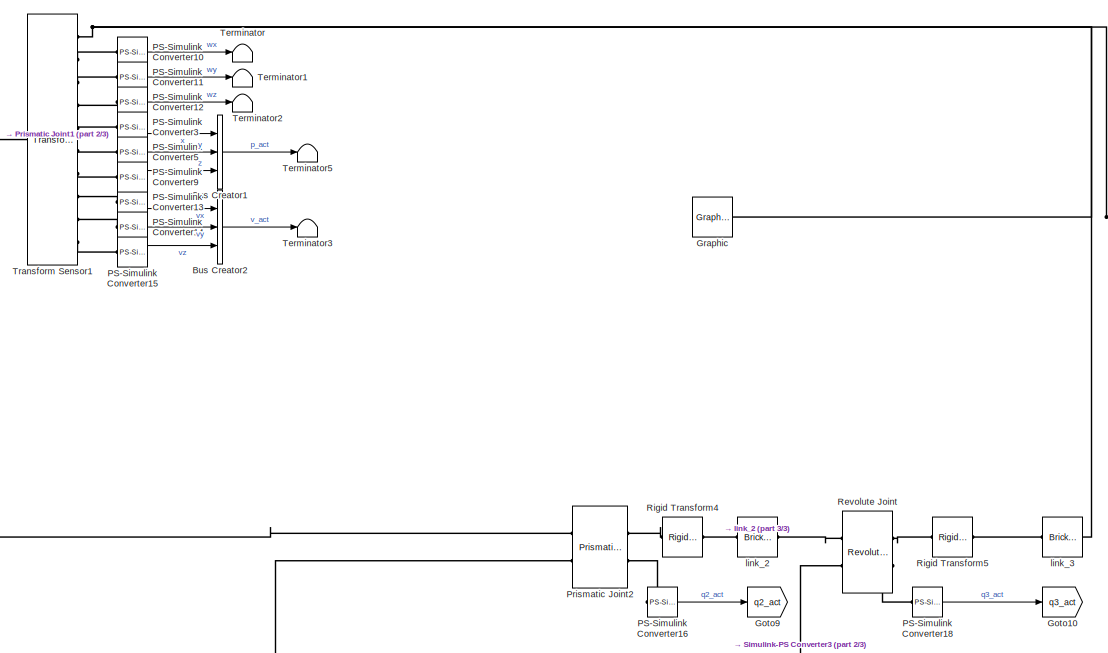
[diagram: root canvas - part 1/3, top right region]
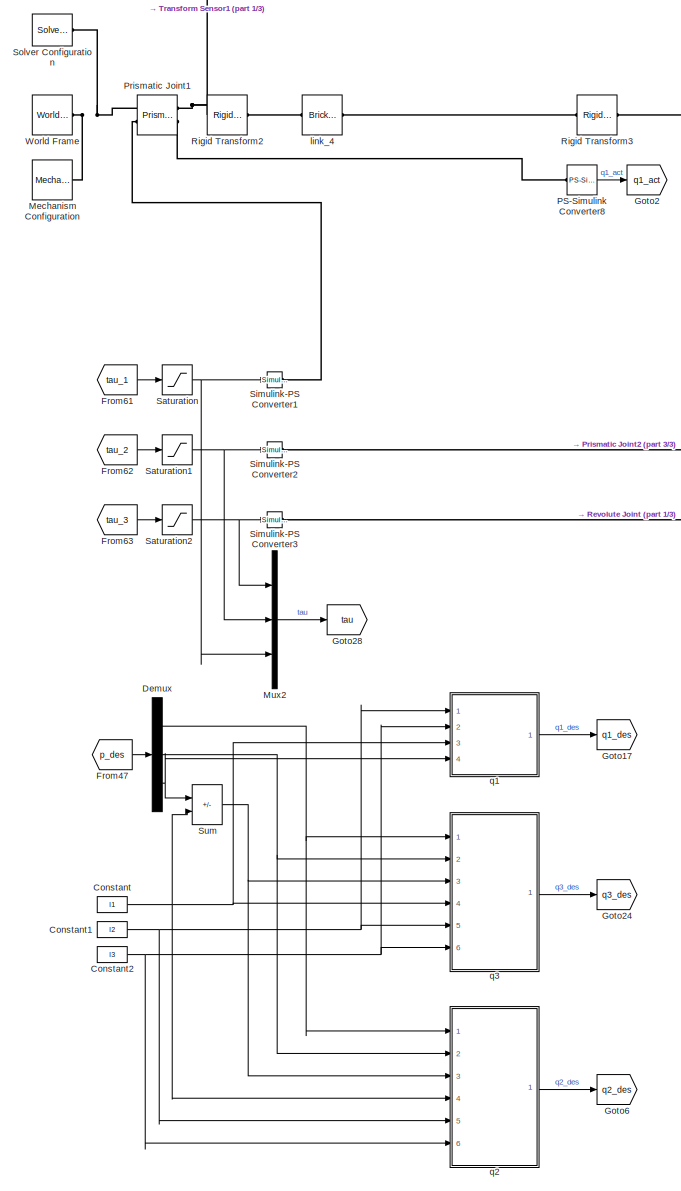
[diagram: root canvas - part 2/3, middle left region]
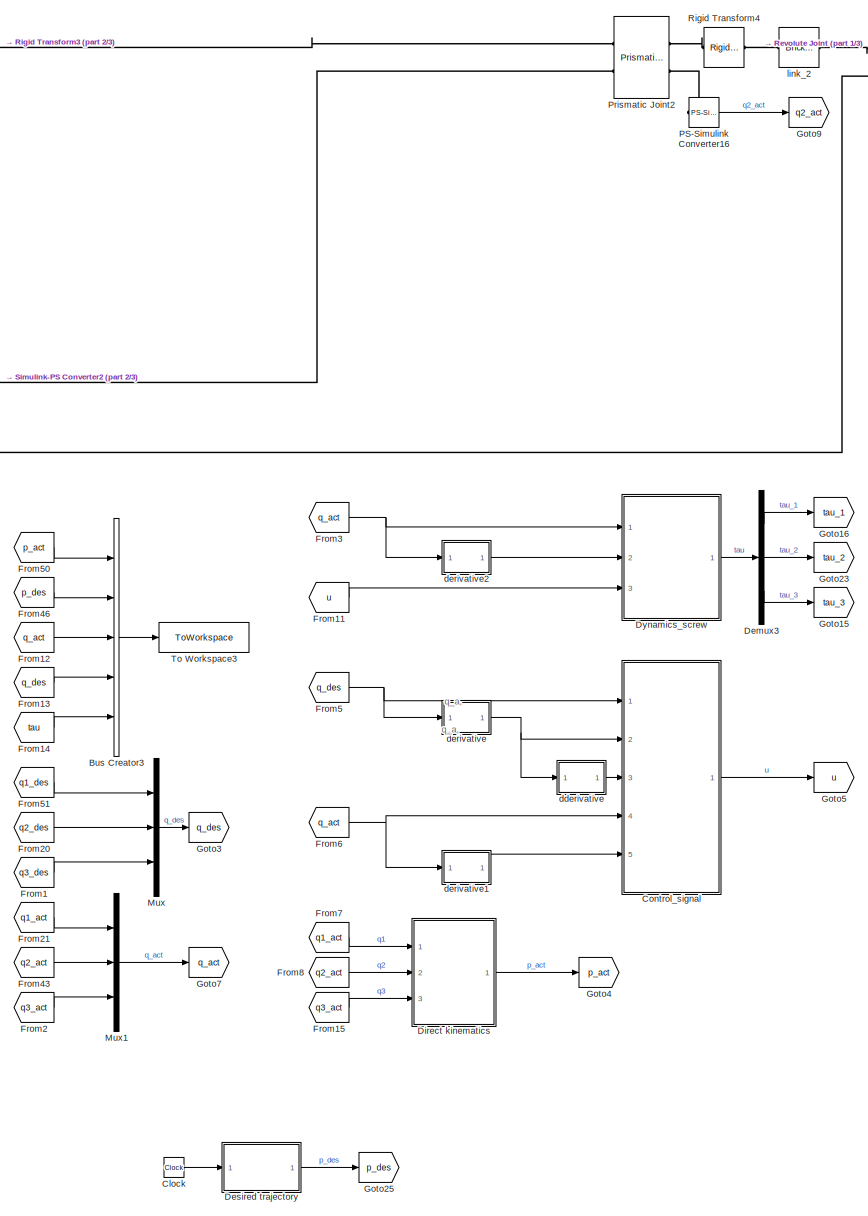
[diagram: root canvas - part 3/3, central region]
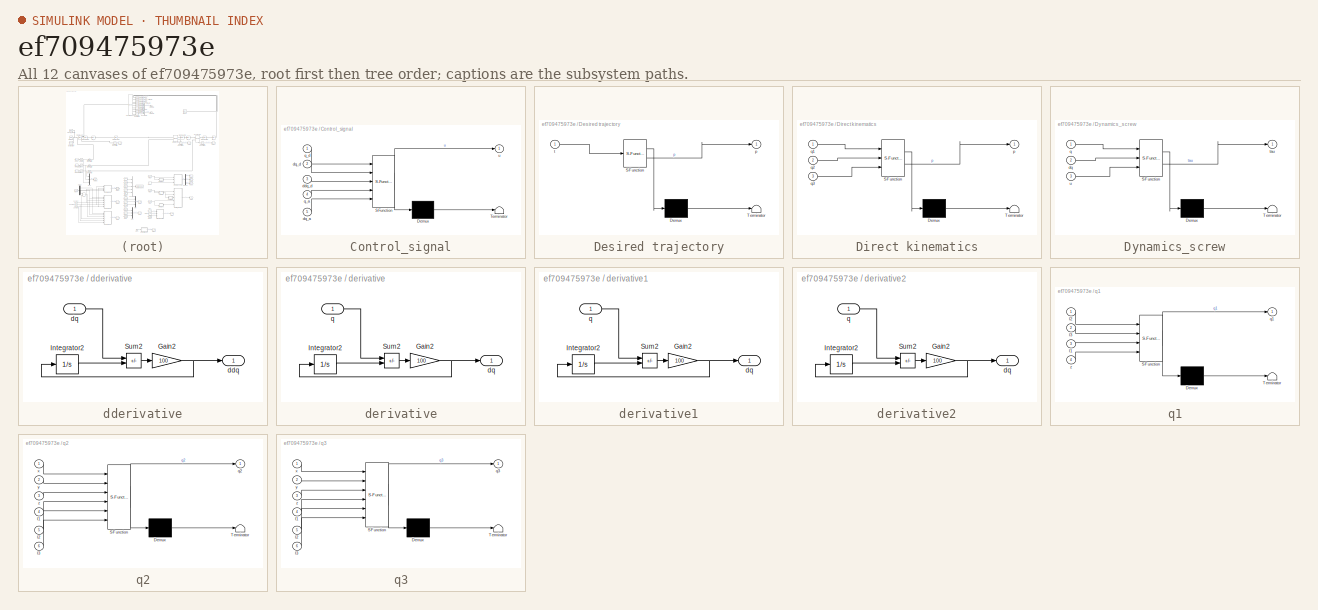
[diagram: thumbnail index - all 12 canvases of the model, root first then tree order]
MODEL slx_ef709475973e
KIND model
CONFIG AbsTol = auto
CONFIG EnableMultiTasking = on
CONFIG FixedStep = auto
CONFIG MaxStep = 0.01
CONFIG MinStep = auto
CONFIG RelTol = 1e-3
CONFIG SampleTimeConstraint = Unconstrained
CONFIG SolverName = VariableStepAuto
CONFIG StartTime = 0.0
CONFIG StopTime = StopTime
BLOCK [BusCreator] Bus Creator1
  DisplayOption = bar
  InheritFromInputs = on
  Inputs = 3
  Ports = [3, 1]
BLOCK [BusCreator] Bus Creator2
  DisplayOption = bar
  InheritFromInputs = on
  Inputs = 3
  Ports = [3, 1]
BLOCK [BusCreator] Bus Creator3
  DisplayOption = bar
  InheritFromInputs = on
  Inputs = 5
  Ports = [5, 1]
BLOCK [Clock] Clock
  Decimation = 4
BLOCK [Constant] Constant
  Value = l1
BLOCK [Constant] Constant1
  Value = l2
BLOCK [Constant] Constant2
  Value = l3
BLOCK [SubSystem] Control_signal
  ErrorFcn = Stateflow.Translate.translate
  PermitHierarchicalResolution = ExplicitOnly
  Ports = [5, 1]
  RequestExecContextInheritance = off
  SFBlockType = MATLAB Function
  TreatAsAtomicUnit = on
BLOCK [Demux] Control_signal/ Demux 
  Outputs = 1
  Ports = [1, 1]
BLOCK [S-Function] Control_signal/ SFunction 
  EnableBusSupport = on
  FunctionName = sf_sfun
  PortCounts = [5 2]
  Ports = [5, 2]
  SFcnIsStateOwnerBlock = off
  SFunctionDeploymentMode = off
  Tag = Stateflow S-Function 15
BLOCK [Terminator] Control_signal/ Terminator 
BLOCK [Inport] Control_signal/ddq_d
  Port = 3
BLOCK [Inport] Control_signal/dq_a
  Port = 5
BLOCK [Inport] Control_signal/dq_d
  Port = 2
BLOCK [Inport] Control_signal/q_a
  Port = 4
BLOCK [Inport] Control_signal/q_d
BLOCK [Outport] Control_signal/u
  VectorParamsAs1DForOutWhenUnconnected = off
BLOCK [Demux] Demux
  Outputs = 3
  Ports = [1, 3]
BLOCK [Demux] Demux3
  Outputs = 3
  Ports = [1, 3]
BLOCK [SubSystem] Desired trajectory
  ErrorFcn = Stateflow.Translate.translate
  PermitHierarchicalResolution = ExplicitOnly
  Ports = [1, 1]
  RequestExecContextInheritance = off
  SFBlockType = MATLAB Function
  TreatAsAtomicUnit = on
BLOCK [Demux] Desired trajectory/ Demux 
  Outputs = 1
  Ports = [1, 1]
BLOCK [S-Function] Desired trajectory/ SFunction 
  EnableBusSupport = on
  FunctionName = sf_sfun
  PortCounts = [1 2]
  Ports = [1, 2]
  SFcnIsStateOwnerBlock = off
  SFunctionDeploymentMode = off
  Tag = Stateflow S-Function 10
BLOCK [Terminator] Desired trajectory/ Terminator 
BLOCK [Outport] Desired trajectory/p
BLOCK [Inport] Desired trajectory/t
BLOCK [SubSystem] Direct kinematics
  ErrorFcn = Stateflow.Translate.translate
  PermitHierarchicalResolution = ExplicitOnly
  Ports = [3, 1]
  RequestExecContextInheritance = off
  SFBlockType = MATLAB Function
  TreatAsAtomicUnit = on
BLOCK [Demux] Direct kinematics/ Demux 
  Outputs = 1
  Ports = [1, 1]
BLOCK [S-Function] Direct kinematics/ SFunction 
  EnableBusSupport = on
  FunctionName = sf_sfun
  PortCounts = [3 2]
  Ports = [3, 2]
  SFcnIsStateOwnerBlock = off
  SFunctionDeploymentMode = off
  Tag = Stateflow S-Function 21
BLOCK [Terminator] Direct kinematics/ Terminator 
BLOCK [Outport] Direct kinematics/p
  VectorParamsAs1DForOutWhenUnconnected = off
BLOCK [Inport] Direct kinematics/q1
BLOCK [Inport] Direct kinematics/q2
  Port = 2
BLOCK [Inport] Direct kinematics/q3
  Port = 3
BLOCK [SubSystem] Dynamics_screw
  ErrorFcn = Stateflow.Translate.translate
  PermitHierarchicalResolution = ExplicitOnly
  Ports = [3, 1]
  RequestExecContextInheritance = off
  SFBlockType = MATLAB Function
  TreatAsAtomicUnit = on
BLOCK [Demux] Dynamics_screw/ Demux 
  Outputs = 1
  Ports = [1, 1]
BLOCK [S-Function] Dynamics_screw/ SFunction 
  EnableBusSupport = on
  FunctionName = sf_sfun
  PortCounts = [3 2]
  Ports = [3, 2]
  SFcnIsStateOwnerBlock = off
  SFunctionDeploymentMode = off
  Tag = Stateflow S-Function 17
BLOCK [Terminator] Dynamics_screw/ Terminator 
BLOCK [Inport] Dynamics_screw/dq
  Port = 2
BLOCK [Inport] Dynamics_screw/q
BLOCK [Outport] Dynamics_screw/tau
  VectorParamsAs1DForOutWhenUnconnected = off
BLOCK [Inport] Dynamics_screw/u
  Port = 3
BLOCK [From] From1
  GotoTag = q3_des
BLOCK [From] From11
  GotoTag = u
BLOCK [From] From12
  GotoTag = q_act
BLOCK [From] From13
  GotoTag = q_des
BLOCK [From] From14
  GotoTag = tau
BLOCK [From] From15
  GotoTag = q3_act
BLOCK [From] From2
  GotoTag = q3_act
BLOCK [From] From20
  GotoTag = q2_des
BLOCK [From] From21
  GotoTag = q1_act
BLOCK [From] From3
  GotoTag = q_act
BLOCK [From] From43
  GotoTag = q2_act
BLOCK [From] From46
  GotoTag = p_des
BLOCK [From] From47
  GotoTag = p_des
BLOCK [From] From5
  GotoTag = q_des
BLOCK [From] From50
  GotoTag = p_act
BLOCK [From] From51
  GotoTag = q1_des
BLOCK [From] From6
  GotoTag = q_act
BLOCK [From] From61
  GotoTag = tau_1
BLOCK [From] From62
  GotoTag = tau_2
BLOCK [From] From63
  GotoTag = tau_3
BLOCK [From] From7
  GotoTag = q1_act
BLOCK [From] From8
  GotoTag = q2_act
BLOCK [Goto] Goto10
  GotoTag = q3_act
BLOCK [Goto] Goto15
  GotoTag = tau_3
BLOCK [Goto] Goto16
  GotoTag = tau_1
BLOCK [Goto] Goto17
  GotoTag = q1_des
BLOCK [Goto] Goto2
  GotoTag = q1_act
BLOCK [Goto] Goto23
  GotoTag = tau_2
BLOCK [Goto] Goto24
  GotoTag = q3_des
BLOCK [Goto] Goto25
  GotoTag = p_des
BLOCK [Goto] Goto28
  GotoTag = tau
BLOCK [Goto] Goto3
  GotoTag = q_des
BLOCK [Goto] Goto4
  GotoTag = p_act
BLOCK [Goto] Goto5
  GotoTag = u
BLOCK [Goto] Goto6
  GotoTag = q2_des
BLOCK [Goto] Goto7
  GotoTag = q_act
BLOCK [Goto] Goto9
  GotoTag = q2_act
BLOCK [Reference] Graphic  REF=sm_lib/Body Elements/Graphic
  Ports = [0, 0, 0, 0, 0, 0, 1]
  SourceBlock = sm_lib/Body Elements/Graphic
  SourceProductBaseCode = MS
  SourceType = Graphic
BLOCK [Reference] Mechanism Configuration  REF=sm_lib/Utilities/Mechanism
Configuration
  Ports = [0, 0, 0, 0, 0, 0, 1]
  SourceBlock = sm_lib/Utilities/Mechanism\nConfiguration
  SourceProductBaseCode = MS
  SourceType = Mechanism\nConfiguration
BLOCK [Mux] Mux
  DisplayOption = bar
  Inputs = 3
  Ports = [3, 1]
BLOCK [Mux] Mux1
  DisplayOption = bar
  Inputs = 3
  Ports = [3, 1]
BLOCK [Mux] Mux2
  DisplayOption = bar
  Inputs = 3
  Ports = [3, 1]
BLOCK [Reference] PS-Simulink Converter10  REF=nesl_utility/PS-Simulink
Converter
  Ports = [0, 1, 0, 0, 0, 1]
  SourceBlock = nesl_utility/PS-Simulink\nConverter
  SourceProductBaseCode = PW,SS
  SourceType = PS-Simulink\nConverter
BLOCK [Reference] PS-Simulink Converter11  REF=nesl_utility/PS-Simulink
Converter
  Ports = [0, 1, 0, 0, 0, 1]
  SourceBlock = nesl_utility/PS-Simulink\nConverter
  SourceProductBaseCode = PW,SS
  SourceType = PS-Simulink\nConverter
BLOCK [Reference] PS-Simulink Converter12  REF=nesl_utility/PS-Simulink
Converter
  Ports = [0, 1, 0, 0, 0, 1]
  SourceBlock = nesl_utility/PS-Simulink\nConverter
  SourceProductBaseCode = PW,SS
  SourceType = PS-Simulink\nConverter
BLOCK [Reference] PS-Simulink Converter13  REF=nesl_utility/PS-Simulink
Converter
  Ports = [0, 1, 0, 0, 0, 1]
  SourceBlock = nesl_utility/PS-Simulink\nConverter
  SourceProductBaseCode = PW,SS
  SourceType = PS-Simulink\nConverter
BLOCK [Reference] PS-Simulink Converter14  REF=nesl_utility/PS-Simulink
Converter
  Ports = [0, 1, 0, 0, 0, 1]
  SourceBlock = nesl_utility/PS-Simulink\nConverter
  SourceProductBaseCode = PW,SS
  SourceType = PS-Simulink\nConverter
BLOCK [Reference] PS-Simulink Converter15  REF=nesl_utility/PS-Simulink
Converter
  Ports = [0, 1, 0, 0, 0, 1]
  SourceBlock = nesl_utility/PS-Simulink\nConverter
  SourceProductBaseCode = PW,SS
  SourceType = PS-Simulink\nConverter
BLOCK [Reference] PS-Simulink Converter16  REF=nesl_utility/PS-Simulink
Converter
  Ports = [0, 1, 0, 0, 0, 1]
  SourceBlock = nesl_utility/PS-Simulink\nConverter
  SourceProductBaseCode = PW,SS
  SourceType = PS-Simulink\nConverter
BLOCK [Reference] PS-Simulink Converter18  REF=nesl_utility/PS-Simulink
Converter
  Ports = [0, 1, 0, 0, 0, 1]
  SourceBlock = nesl_utility/PS-Simulink\nConverter
  SourceProductBaseCode = PW,SS
  SourceType = PS-Simulink\nConverter
BLOCK [Reference] PS-Simulink Converter3  REF=nesl_utility/PS-Simulink
Converter
  Ports = [0, 1, 0, 0, 0, 1]
  SourceBlock = nesl_utility/PS-Simulink\nConverter
  SourceProductBaseCode = PW,SS
  SourceType = PS-Simulink\nConverter
BLOCK [Reference] PS-Simulink Converter5  REF=nesl_utility/PS-Simulink
Converter
  Ports = [0, 1, 0, 0, 0, 1]
  SourceBlock = nesl_utility/PS-Simulink\nConverter
  SourceProductBaseCode = PW,SS
  SourceType = PS-Simulink\nConverter
BLOCK [Reference] PS-Simulink Converter8  REF=nesl_utility/PS-Simulink
Converter
  Ports = [0, 1, 0, 0, 0, 1]
  SourceBlock = nesl_utility/PS-Simulink\nConverter
  SourceProductBaseCode = PW,SS
  SourceType = PS-Simulink\nConverter
BLOCK [Reference] PS-Simulink Converter9  REF=nesl_utility/PS-Simulink
Converter
  Ports = [0, 1, 0, 0, 0, 1]
  SourceBlock = nesl_utility/PS-Simulink\nConverter
  SourceProductBaseCode = PW,SS
  SourceType = PS-Simulink\nConverter
BLOCK [Reference] Prismatic Joint1  REF=sm_lib/Joints/Prismatic
Joint
  Ports = [0, 0, 0, 0, 0, 2, 2]
  SourceBlock = sm_lib/Joints/Prismatic\nJoint
  SourceProductBaseCode = MS
  SourceType = Prismatic\nJoint
BLOCK [Reference] Prismatic Joint2  REF=sm_lib/Joints/Prismatic
Joint
  Ports = [0, 0, 0, 0, 0, 2, 2]
  SourceBlock = sm_lib/Joints/Prismatic\nJoint
  SourceProductBaseCode = MS
  SourceType = Prismatic\nJoint
BLOCK [Reference] Revolute Joint  REF=sm_lib/Joints/Revolute Joint
  Ports = [0, 0, 0, 0, 0, 2, 2]
  SourceBlock = sm_lib/Joints/Revolute Joint
  SourceProductBaseCode = MS
  SourceType = Revolute Joint
BLOCK [Reference] Rigid Transform2  REF=sm_lib/Frames and
Transforms/Rigid
Transform
  Ports = [0, 0, 0, 0, 0, 1, 1]
  SourceBlock = sm_lib/Frames and\nTransforms/Rigid\nTransform
  SourceProductBaseCode = MS
  SourceType = Rigid\nTransform
BLOCK [Reference] Rigid Transform3  REF=sm_lib/Frames and
Transforms/Rigid
Transform
  Ports = [0, 0, 0, 0, 0, 1, 1]
  SourceBlock = sm_lib/Frames and\nTransforms/Rigid\nTransform
  SourceProductBaseCode = MS
  SourceType = Rigid\nTransform
BLOCK [Reference] Rigid Transform4  REF=sm_lib/Frames and
Transforms/Rigid
Transform
  Ports = [0, 0, 0, 0, 0, 1, 1]
  SourceBlock = sm_lib/Frames and\nTransforms/Rigid\nTransform
  SourceProductBaseCode = MS
  SourceType = Rigid\nTransform
BLOCK [Reference] Rigid Transform5  REF=sm_lib/Frames and
Transforms/Rigid
Transform
  Ports = [0, 0, 0, 0, 0, 1, 1]
  SourceBlock = sm_lib/Frames and\nTransforms/Rigid\nTransform
  SourceProductBaseCode = MS
  SourceType = Rigid\nTransform
BLOCK [Saturate] Saturation
  LowerLimit = -0.23
  UpperLimit = 0.23
BLOCK [Saturate] Saturation1
  LowerLimit = -0.43
  UpperLimit = 0.43
BLOCK [Saturate] Saturation2
  LowerLimit = -0.19
  UpperLimit = 0.19
BLOCK [Reference] Simulink-PS Converter1  REF=nesl_utility/Simulink-PS
Converter
  Ports = [1, 0, 0, 0, 0, 0, 1]
  SourceBlock = nesl_utility/Simulink-PS\nConverter
  SourceProductBaseCode = PW,SS
  SourceType = Simulink-PS\nConverter
BLOCK [Reference] Simulink-PS Converter2  REF=nesl_utility/Simulink-PS
Converter
  Ports = [1, 0, 0, 0, 0, 0, 1]
  SourceBlock = nesl_utility/Simulink-PS\nConverter
  SourceProductBaseCode = PW,SS
  SourceType = Simulink-PS\nConverter
BLOCK [Reference] Simulink-PS Converter3  REF=nesl_utility/Simulink-PS
Converter
  Ports = [1, 0, 0, 0, 0, 0, 1]
  SourceBlock = nesl_utility/Simulink-PS\nConverter
  SourceProductBaseCode = PW,SS
  SourceType = Simulink-PS\nConverter
BLOCK [Reference] Solver Configuration  REF=nesl_utility/Solver
Configuration
  Ports = [0, 0, 0, 0, 0, 0, 1]
  SourceBlock = nesl_utility/Solver\nConfiguration
  SourceProductBaseCode = PW,SS
  SourceType = Solver\nConfiguration
BLOCK [Sum] Sum
  IconShape = rectangular
  Inputs = +-
  Ports = [2, 1]
BLOCK [Terminator] Terminator
BLOCK [Terminator] Terminator1
BLOCK [Terminator] Terminator2
BLOCK [Terminator] Terminator3
BLOCK [Terminator] Terminator5
BLOCK [ToWorkspace] To Workspace3
  FixptAsFi = on
  MaxDataPoints = inf
  Ports = [1]
  SampleTime = -1
  SaveFormat = Timeseries
  VariableName = outputs
BLOCK [Reference] Transform Sensor1  REF=sm_lib/Frames and
Transforms/Transform
Sensor
  Ports = [0, 0, 0, 0, 0, 1, 10]
  SourceBlock = sm_lib/Frames and\nTransforms/Transform\nSensor
  SourceProductBaseCode = MS
  SourceType = Transform\nSensor
BLOCK [Reference] World Frame  REF=sm_lib/Frames and
Transforms/World Frame
  Ports = [0, 0, 0, 0, 0, 0, 1]
  SourceBlock = sm_lib/Frames and\nTransforms/World Frame
  SourceProductBaseCode = MS
  SourceType = World Frame
BLOCK [SubSystem] dderivative
  Ports = [1, 1]
  RequestExecContextInheritance = off
BLOCK [Gain] dderivative/Gain2
  Gain = 100
BLOCK [Integrator] dderivative/Integrator2
  Ports = [1, 1]
BLOCK [Sum] dderivative/Sum2
  IconShape = rectangular
  Inputs = +-
  Ports = [2, 1]
BLOCK [Outport] dderivative/ddq
BLOCK [Inport] dderivative/dq
BLOCK [SubSystem] derivative
  Ports = [1, 1]
  RequestExecContextInheritance = off
BLOCK [Gain] derivative/Gain2
  Gain = 100
BLOCK [Integrator] derivative/Integrator2
  Ports = [1, 1]
BLOCK [Sum] derivative/Sum2
  IconShape = rectangular
  Inputs = +-
  Ports = [2, 1]
BLOCK [Outport] derivative/dq
BLOCK [Inport] derivative/q
BLOCK [SubSystem] derivative1
  Ports = [1, 1]
  RequestExecContextInheritance = off
BLOCK [Gain] derivative1/Gain2
  Gain = 100
BLOCK [Integrator] derivative1/Integrator2
  Ports = [1, 1]
BLOCK [Sum] derivative1/Sum2
  IconShape = rectangular
  Inputs = +-
  Ports = [2, 1]
BLOCK [Outport] derivative1/dq
BLOCK [Inport] derivative1/q
BLOCK [SubSystem] derivative2
  Ports = [1, 1]
  RequestExecContextInheritance = off
BLOCK [Gain] derivative2/Gain2
  Gain = 100
BLOCK [Integrator] derivative2/Integrator2
  Ports = [1, 1]
BLOCK [Sum] derivative2/Sum2
  IconShape = rectangular
  Inputs = +-
  Ports = [2, 1]
BLOCK [Outport] derivative2/dq
BLOCK [Inport] derivative2/q
BLOCK [Reference] link_2  REF=sm_lib/Body Elements/Brick Solid
  Ports = [0, 0, 0, 0, 0, 1, 1]
  SourceBlock = sm_lib/Body Elements/Brick Solid
  SourceProductBaseCode = MS
  SourceType = Brick Solid
BLOCK [Reference] link_3  REF=sm_lib/Body Elements/Brick Solid
  Ports = [0, 0, 0, 0, 0, 1, 1]
  SourceBlock = sm_lib/Body Elements/Brick Solid
  SourceProductBaseCode = MS
  SourceType = Brick Solid
BLOCK [Reference] link_4  REF=sm_lib/Body Elements/Brick Solid
  Ports = [0, 0, 0, 0, 0, 1, 1]
  SourceBlock = sm_lib/Body Elements/Brick Solid
  SourceProductBaseCode = MS
  SourceType = Brick Solid
BLOCK [SubSystem] q1
  ErrorFcn = Stateflow.Translate.translate
  PermitHierarchicalResolution = ExplicitOnly
  Ports = [4, 1]
  RequestExecContextInheritance = off
  SFBlockType = MATLAB Function
  TreatAsAtomicUnit = on
BLOCK [Demux] q1/ Demux 
  Outputs = 1
  Ports = [1, 1]
BLOCK [S-Function] q1/ SFunction 
  EnableBusSupport = on
  FunctionName = sf_sfun
  PortCounts = [4 2]
  Ports = [4, 2]
  SFcnIsStateOwnerBlock = off
  SFunctionDeploymentMode = off
  Tag = Stateflow S-Function 11
BLOCK [Terminator] q1/ Terminator 
BLOCK [Inport] q1/l1
  Port = 3
BLOCK [Inport] q1/l2
BLOCK [Inport] q1/l3
  Port = 2
BLOCK [Outport] q1/q1
BLOCK [Inport] q1/z
  Port = 4
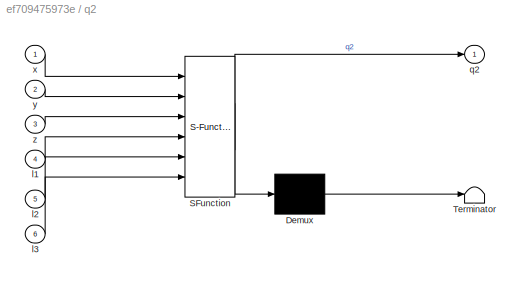
BLOCK [SubSystem] q2
  ErrorFcn = Stateflow.Translate.translate
  PermitHierarchicalResolution = ExplicitOnly
  Ports = [6, 1]
  RequestExecContextInheritance = off
  SFBlockType = MATLAB Function
  TreatAsAtomicUnit = on
BLOCK [Demux] q2/ Demux 
  Outputs = 1
  Ports = [1, 1]
BLOCK [S-Function] q2/ SFunction 
  EnableBusSupport = on
  FunctionName = sf_sfun
  PortCounts = [6 2]
  Ports = [6, 2]
  SFcnIsStateOwnerBlock = off
  SFunctionDeploymentMode = off
  Tag = Stateflow S-Function 13
BLOCK [Terminator] q2/ Terminator 
BLOCK [Inport] q2/l1
  Port = 4
BLOCK [Inport] q2/l2
  Port = 5
BLOCK [Inport] q2/l3
  Port = 6
BLOCK [Outport] q2/q2
BLOCK [Inport] q2/x
BLOCK [Inport] q2/y
  Port = 2
BLOCK [Inport] q2/z
  Port = 3
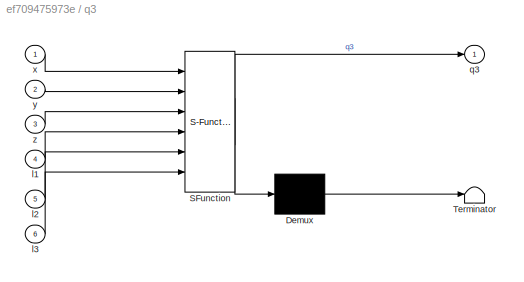
BLOCK [SubSystem] q3
  ErrorFcn = Stateflow.Translate.translate
  PermitHierarchicalResolution = ExplicitOnly
  Ports = [6, 1]
  RequestExecContextInheritance = off
  SFBlockType = MATLAB Function
  TreatAsAtomicUnit = on
BLOCK [Demux] q3/ Demux 
  Outputs = 1
  Ports = [1, 1]
BLOCK [S-Function] q3/ SFunction 
  EnableBusSupport = on
  FunctionName = sf_sfun
  PortCounts = [6 2]
  Ports = [6, 2]
  SFcnIsStateOwnerBlock = off
  SFunctionDeploymentMode = off
  Tag = Stateflow S-Function 12
BLOCK [Terminator] q3/ Terminator 
BLOCK [Inport] q3/l1
  Port = 4
BLOCK [Inport] q3/l2
  Port = 5
BLOCK [Inport] q3/l3
  Port = 6
BLOCK [Outport] q3/q3
BLOCK [Inport] q3/x
BLOCK [Inport] q3/y
  Port = 2
BLOCK [Inport] q3/z
  Port = 3
ANNOTATION (root): q_a,
LINE Bus Creator1:1 -> Terminator5:1
LINE Bus Creator2:1 -> Terminator3:1
LINE Bus Creator3:1 -> To Workspace3:1
LINE Clock:1 -> Desired trajectory:1
NET Constant1:1 -> q1:1, q2:5, q3:5
NET Constant2:1 -> q1:2, q2:6, q3:6
NET Constant:1 -> Sum:2, q1:3, q2:4, q3:4
LINE Control_signal:1 -> Goto5:1
LINE Demux3:1 -> Goto16:1
LINE Demux3:2 -> Goto23:1
LINE Demux3:3 -> Goto15:1
NET Demux:1 -> q2:1, q3:1
NET Demux:2 -> q2:2, q3:2
NET Demux:3 -> Sum:1, q1:4
LINE Desired trajectory:1 -> Goto25:1
LINE Direct kinematics:1 -> Goto4:1
LINE Dynamics_screw:1 -> Demux3:1
LINE From11:1 -> Dynamics_screw:3
LINE From12:1 -> Bus Creator3:3
LINE From13:1 -> Bus Creator3:4
LINE From14:1 -> Bus Creator3:5
LINE From15:1 -> Direct kinematics:3
LINE From1:1 -> Mux:3
LINE From20:1 -> Mux:2
LINE From21:1 -> Mux1:1
LINE From2:1 -> Mux1:3
NET From3:1 -> Dynamics_screw:1, derivative2:1
LINE From43:1 -> Mux1:2
LINE From46:1 -> Bus Creator3:2
LINE From47:1 -> Demux:1
LINE From50:1 -> Bus Creator3:1
LINE From51:1 -> Mux:1
NET From5:1 -> Control_signal:1, derivative:1
LINE From61:1 -> Saturation:1
LINE From62:1 -> Saturation1:1
LINE From63:1 -> Saturation2:1
NET From6:1 -> Control_signal:4, derivative1:1
LINE From7:1 -> Direct kinematics:1
LINE From8:1 -> Direct kinematics:2
LINE Mux1:1 -> Goto7:1
LINE Mux2:1 -> Goto28:1
LINE Mux:1 -> Goto3:1
LINE PS-Simulink Converter10:1 -> Terminator:1
LINE PS-Simulink Converter11:1 -> Terminator1:1
LINE PS-Simulink Converter12:1 -> Terminator2:1
LINE PS-Simulink Converter13:1 -> Bus Creator2:1
LINE PS-Simulink Converter14:1 -> Bus Creator2:2
LINE PS-Simulink Converter15:1 -> Bus Creator2:3
LINE PS-Simulink Converter16:1 -> Goto9:1
LINE PS-Simulink Converter18:1 -> Goto10:1
LINE PS-Simulink Converter3:1 -> Bus Creator1:1
LINE PS-Simulink Converter5:1 -> Bus Creator1:2
LINE PS-Simulink Converter8:1 -> Goto2:1
LINE PS-Simulink Converter9:1 -> Bus Creator1:3
NET Saturation1:1 -> Mux2:2, Simulink-PS Converter2:1
NET Saturation2:1 -> Mux2:1, Simulink-PS Converter3:1
NET Saturation:1 -> Mux2:3, Simulink-PS Converter1:1
NET Sum:1 -> q2:3, q3:3
NET dderivative/Gain2:1 -> dderivative/Integrator2:1, dderivative/ddq:1
LINE dderivative/Integrator2:1 -> dderivative/Sum2:2
LINE dderivative/Sum2:1 -> dderivative/Gain2:1
LINE dderivative/dq:1 -> dderivative/Sum2:1
LINE dderivative:1 -> Control_signal:3
NET derivative/Gain2:1 -> derivative/Integrator2:1, derivative/dq:1
LINE derivative/Integrator2:1 -> derivative/Sum2:2
LINE derivative/Sum2:1 -> derivative/Gain2:1
LINE derivative/q:1 -> derivative/Sum2:1
NET derivative1/Gain2:1 -> derivative1/Integrator2:1, derivative1/dq:1
LINE derivative1/Integrator2:1 -> derivative1/Sum2:2
LINE derivative1/Sum2:1 -> derivative1/Gain2:1
LINE derivative1/q:1 -> derivative1/Sum2:1
LINE derivative1:1 -> Control_signal:5
NET derivative2/Gain2:1 -> derivative2/Integrator2:1, derivative2/dq:1
LINE derivative2/Integrator2:1 -> derivative2/Sum2:2
LINE derivative2/Sum2:1 -> derivative2/Gain2:1
LINE derivative2/q:1 -> derivative2/Sum2:1
LINE derivative2:1 -> Dynamics_screw:2
NET derivative:1 -> Control_signal:2, dderivative:1
LINE q1:1 -> Goto17:1
LINE q2:1 -> Goto6:1
LINE q3:1 -> Goto24:1
PNET net1: Graphic:RConn1 -- Transform Sensor1:RConn1 -- link_3:RConn1
PNET net2: Mechanism Configuration:RConn1 -- Prismatic Joint1:LConn1 -- Solver Configuration:RConn1 -- World Frame:RConn1
PLINE PS-Simulink Converter10:LConn1 -- Transform Sensor1:RConn2
PLINE PS-Simulink Converter11:LConn1 -- Transform Sensor1:RConn3
PLINE PS-Simulink Converter12:LConn1 -- Transform Sensor1:RConn4
PLINE PS-Simulink Converter13:LConn1 -- Transform Sensor1:RConn8
PLINE PS-Simulink Converter14:LConn1 -- Transform Sensor1:RConn9
PLINE PS-Simulink Converter15:LConn1 -- Transform Sensor1:RConn10
PLINE PS-Simulink Converter16:LConn1 -- Prismatic Joint2:RConn2
PLINE PS-Simulink Converter18:LConn1 -- Revolute Joint:RConn2
PLINE PS-Simulink Converter3:LConn1 -- Transform Sensor1:RConn5
PLINE PS-Simulink Converter5:LConn1 -- Transform Sensor1:RConn6
PLINE PS-Simulink Converter8:LConn1 -- Prismatic Joint1:RConn2
PLINE PS-Simulink Converter9:LConn1 -- Transform Sensor1:RConn7
PLINE Prismatic Joint1:LConn2 -- Simulink-PS Converter1:RConn1
PNET net3: Prismatic Joint1:RConn1 -- Rigid Transform2:LConn1 -- Transform Sensor1:LConn1
PLINE Prismatic Joint2:LConn1 -- Rigid Transform3:RConn1
PLINE Prismatic Joint2:LConn2 -- Simulink-PS Converter2:RConn1
PLINE Prismatic Joint2:RConn1 -- Rigid Transform4:LConn1
PLINE Revolute Joint:LConn1 -- link_2:RConn1
PLINE Revolute Joint:LConn2 -- Simulink-PS Converter3:RConn1
PLINE Revolute Joint:RConn1 -- Rigid Transform5:LConn1
PLINE Rigid Transform2:RConn1 -- link_4:LConn1
PLINE Rigid Transform3:LConn1 -- link_4:RConn1
PLINE Rigid Transform4:RConn1 -- link_2:LConn1
PLINE Rigid Transform5:RConn1 -- link_3:LConn1
note: NET lines group one-source signal fan-out (src -> all destinations, sorted); 1:1 wires keep LINE; PNET lines group multi-terminal physical nets as a canonical sorted terminal list (undirected conserving connections); 2-terminal nets keep the pairwise PLINE form
CHART Desired trajectory states=1 transitions=1
  STATE_LABEL 'eML_blk_kernel()'
  STATE_LABEL 'SCRIPT:\nfunction p = fcn(t)\n% p = [0.2*sin(1*t)+0.3;...\n%      0.2*cos(1*t)+0.3;...\n%      0.2*cos(1*t)+0.6];\np = [0;...\n      0;...\n      abs(-0.4*cos(0.5*t))+0.2];\n'
CHART q1 states=1 transitions=1
  STATE_LABEL 'eML_blk_kernel()'
  STATE_LABEL 'SCRIPT:\nfunction q1 = fcn(l2,l3, l1, z)\nqt = z-(l1+l2+l3);\nq1=0.271*qt;\n% q1 = atan2(y,x)+pi;\n% As long as x,y \\neq 0 both these solutions are valid\n% When x,y = 0 the arm is in a singular configuration \n% and there are infinitely many possible solutions for q1.\n'
CHART q3 states=1 transitions=1
  STATE_LABEL 'eML_blk_kernel()'
  STATE_LABEL 'SCRIPT:\nfunction q3 = fcn(x,y,z,l1,l2,l3)\n% D = (x^2 + y^2 + z^2 - l2^2 -l3^2)/(2*l_2*l_3);\n% q3 = atan2(sqrt(1-D^2), D);\n\nqt = z-(l1+l2+l3);\nq1=0.271*qt;\nq2=0.506*qt;\nq3=atan2(q1,q2);\n\n\n\n'
CHART q2 states=1 transitions=1
  STATE_LABEL 'eML_blk_kernel()'
  STATE_LABEL 'SCRIPT:\nfunction q2 = fcn(x,y,z,l1,l2,l3)\n% q2 = atan2(z, sqrt(x^2 + y^2)) - atan2(l3*sin(q3), l2+l3*cos(q3));\n% argument = (x^2+y^2+z^2+l2^2-l3^2)/(2*sqrt(x^2+y^2+z^2)*l2);\n% alpha = acos(argument);\n% gamma = atan2(z, sqrt(x^2+y^2));\nqt = z-(l1+l2+l3);\nq1=0.271*qt;\nq2=0.506*qt;\n'
CHART Control_signal states=1 transitions=1
  STATE_LABEL 'eML_blk_kernel()'
  STATE_LABEL 'SCRIPT:\nfunction u = fcn(q_d,dq_d,ddq_d, q_a,dq_a)\nKa=1;\nKv=20;\nKp=40;\nu = Ka*ddq_d + Kv*(dq_d-dq_a) + Kp*(q_d-q_a);'
CHART Dynamics_screw states=1 transitions=1
  STATE_LABEL 'eML_blk_kernel()'
  STATE_LABEL 'SCRIPT:\nfunction tau= fcn(q,dq,u)\nq1=q(1); q2=q(2); q3=q(3);\ndq1=dq(1); dq2=dq(2); dq3=dq(3);\n\nl1=0.23; l2=0.43; l3=0.19;\nm1 = 16.726;\nm2 = 6.237;\nm3 = 12.243;\ng=9.80665; \n\njx1=0.04905; jy1=0.04905; jz1=0.0081;\njx2=0.00833333; jy2=0.0708333; jz2=0.0708333;\njx3=0.00426667; jy3=0.0554667; jz3=0.0554667;\n\nM =[m1+m2+m3 m2+m3 0;...\n    m2+m3 m2+m3 0;...\n    0 0 jz3];\n\nCq =[0;\n    0;\n    0];\n \nN =[-g*(m...<+69ch>'
CHART Direct kinematics states=1 transitions=1
  STATE_LABEL 'eML_blk_kernel()'
  STATE_LABEL 'SCRIPT:\nfunction p = fcn(q1, q2, q3)\nl1=0.3;l2=0.4;l3=0.4; % m\n% direct kinematics\np = [0;...\n 0;...\n      l1 + l3*sin(q2 + q3) + l2*sin(q2)];\n'
CHART  states=0 transitions=0
CHART  states=0 transitions=0
CHART  states=0 transitions=0
CHART  states=0 transitions=0
CHART  states=0 transitions=0
CHART  states=0 transitions=0
CHART  states=0 transitions=0
